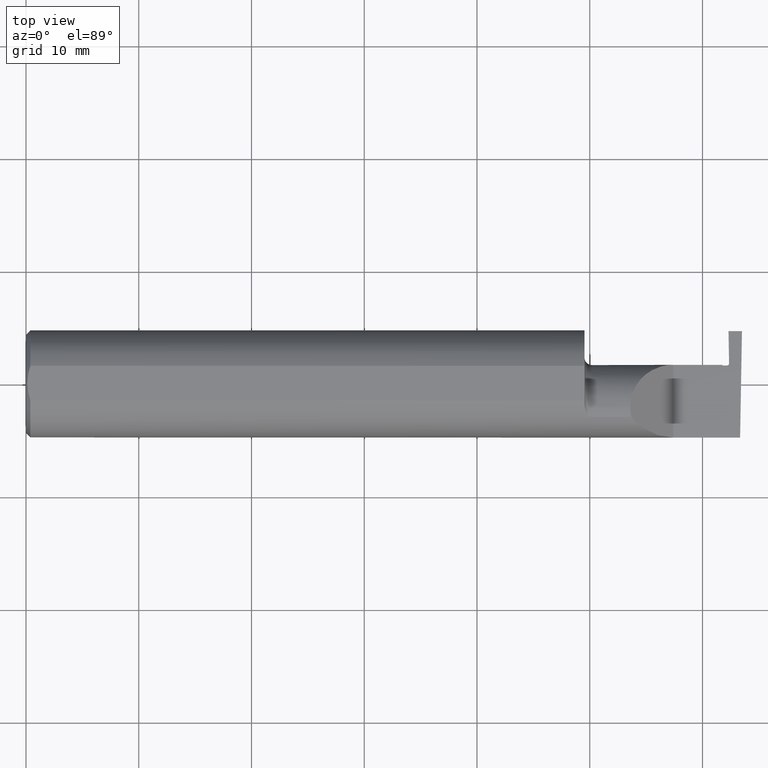
[diagram: clean part render]
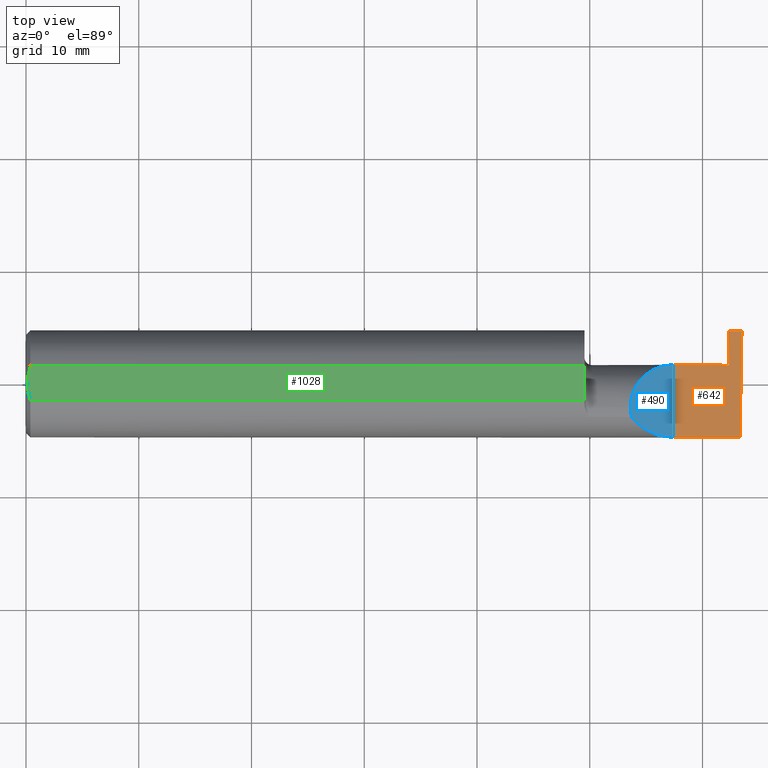
[diagram: same view with three faces highlighted in distinct colors, each labeled with its STEP entity id]
A machine part, top view with three faces highlighted in distinct colors.
Their STEP definitions:

[orange] entity #642 — the highlighted planar face has unit normal (-0, 0, -1).
#30 = VERTEX_POINT ( 'NONE', #423 ) ;
#39 = ORIENTED_EDGE ( 'NONE', *, *, #864, .T. ) ;
#52 = EDGE_CURVE ( 'NONE', #146, #477, #680, .T. ) ;
#65 = CARTESIAN_POINT ( 'NONE',  ( 2.399999999999999911, 0.1846500000000000363, -3.367778697655196529E-19 ) ) ;
#94 = LINE ( 'NONE', #175, #547 ) ;
#119 = B_SPLINE_CURVE_WITH_KNOTS ( 'NONE', 1,
 ( #405, #714 ),
 .UNSPECIFIED., .F., .F.,
 ( 2, 2 ),
 ( 0.000000000000000000, 7.184204878158464156E-05 ),
 .UNSPECIFIED. ) ;
#138 = CARTESIAN_POINT ( 'NONE',  ( 2.260000000000000231, 0.06664999999999998703, 2.939152317953647352E-17 ) ) ;
#145 = LINE ( 'NONE', #799, #532 ) ;
#146 = VERTEX_POINT ( 'NONE', #538 ) ;
#150 = EDGE_CURVE ( 'NONE', #30, #896, #1027, .T. ) ;
#153 = VERTEX_POINT ( 'NONE', #138 ) ;
#154 = VECTOR ( 'NONE', #192, 39.37007874015748143 ) ;
#161 = ORIENTED_EDGE ( 'NONE', *, *, #443, .F. ) ;
#170 = EDGE_CURVE ( 'NONE', #838, #398, #371, .T. ) ;
#175 = CARTESIAN_POINT ( 'NONE',  ( 2.500000000000000000, 0.1846500000000000363, 0.000000000000000000 ) ) ;
#182 = VERTEX_POINT ( 'NONE', #525 ) ;
#192 = DIRECTION ( 'NONE',  ( -0.000000000000000000, 1.000000000000000000, -0.000000000000000000 ) ) ;
#194 = VERTEX_POINT ( 'NONE', #706 ) ;
#205 = PLANE ( 'NONE',  #953 ) ;
#221 = VECTOR ( 'NONE', #868, 39.37007874015748143 ) ;
#222 = ORIENTED_EDGE ( 'NONE', *, *, #340, .F. ) ;
#229 = DIRECTION ( 'NONE',  ( 1.000000000000000000, 0.000000000000000000, 0.000000000000000000 ) ) ;
#248 = ORIENTED_EDGE ( 'NONE', *, *, #1043, .T. ) ;
#275 = CARTESIAN_POINT ( 'NONE',  ( 2.454970289910081593, 0.07177216684492376819, -4.877016300601304121E-11 ) ) ;
#280 = EDGE_CURVE ( 'NONE', #194, #182, #119, .T. ) ;
#290 = CARTESIAN_POINT ( 'NONE',  ( 3.749399456654646757E-32, -0.1873499999999999888, 3.061616997868384127E-16 ) ) ;
#293 = CARTESIAN_POINT ( 'NONE',  ( 2.454970289910081593, 0.07177216684492376819, -4.877016300601304121E-11 ) ) ;
#308 = ORIENTED_EDGE ( 'NONE', *, *, #788, .F. ) ;
#340 = EDGE_CURVE ( 'NONE', #153, #182, #145, .T. ) ;
#344 = ORIENTED_EDGE ( 'NONE', *, *, #52, .T. ) ;
#370 = CARTESIAN_POINT ( 'NONE',  ( 2.447971356043616264, 0.06464999999999866687, -4.347370564169126606E-11 ) ) ;
#371 = LINE ( 'NONE', #65, #824 ) ;
#372 = CARTESIAN_POINT ( 'NONE',  ( 2.260000000000000231, -0.1873499999999999888, 2.939152317953647352E-17 ) ) ;
#398 = VERTEX_POINT ( 'NONE', #655 ) ;
#405 = CARTESIAN_POINT ( 'NONE',  ( 2.432999999988582296, 0.06464999999899190275, 1.634762571518729889E-10 ) ) ;
#423 = CARTESIAN_POINT ( 'NONE',  ( 2.493506715846705468, -0.1873499999999999888, 0.000000000000000000 ) ) ;
#443 = EDGE_CURVE ( 'NONE', #896, #153, #555, .T. ) ;
#460 = CARTESIAN_POINT ( 'NONE',  ( 2.500000000000000000, -0.2000000000000000111, 0.000000000000000000 ) ) ;
#461 = CARTESIAN_POINT ( 'NONE',  ( 2.432999999988582296, 0.06464999999899190275, 1.634762571518729889E-10 ) ) ;
#477 = VERTEX_POINT ( 'NONE', #842 ) ;
#525 = CARTESIAN_POINT ( 'NONE',  ( 2.431000000000000494, 0.06664999999999988989, 9.135099441613365556E-18 ) ) ;
#532 = VECTOR ( 'NONE', #229, 39.37007874015748143 ) ;
#538 = CARTESIAN_POINT ( 'NONE',  ( 2.454970289910081593, 0.07177216684492376819, -4.877016300601304121E-11 ) ) ;
#547 = VECTOR ( 'NONE', #907, 39.37007874015748143 ) ;
#555 = LINE ( 'NONE', #919, #154 ) ;
#605 = CARTESIAN_POINT ( 'NONE',  ( 2.455042847893950775, 0.06761532263369882112, -4.782922004236755124E-11 ) ) ;
#623 = CARTESIAN_POINT ( 'NONE',  ( 2.452999999986549717, 0.1846500000000000363, -3.367778697655196529E-19 ) ) ;
#627 = DIRECTION ( 'NONE',  ( 1.000000000000000000, -0.000000000000000000, -0.000000000000000000 ) ) ;
#642 = ADVANCED_FACE ( 'NONE', ( #942 ), #205, .F. ) ;
#655 = CARTESIAN_POINT ( 'NONE',  ( 2.500000000000000000, 0.1846500000000000363, 0.000000000000000000 ) ) ;
#656 = EDGE_LOOP ( 'NONE', ( #981, #308, #924, #39, #344, #248, #921, #222, #161 ) ) ;
#663 = CARTESIAN_POINT ( 'NONE',  ( 2.447971356043616264, 0.06464999999999866687, -4.347370564169126606E-11 ) ) ;
#680 =( BOUNDED_CURVE ( )  B_SPLINE_CURVE ( 3, ( #275, #605, #827, #663 ),
 .UNSPECIFIED., .F., .F. ) 
 B_SPLINE_CURVE_WITH_KNOTS ( ( 4, 4 ),
 ( 1.301042606982605513E-18, 0.0002808519284744346906 ),
 .UNSPECIFIED. ) 
 CURVE ( )  GEOMETRIC_REPRESENTATION_ITEM ( )  RATIONAL_B_SPLINE_CURVE ( ( 1.000000000000000000, 0.8006061761999021531, 0.8006061761999021531, 1.000000000000000000 ) ) 
 REPRESENTATION_ITEM ( '' )  );
#702 = CARTESIAN_POINT ( 'NONE',  ( 2.452999999986549717, 0.1846500000000000363, -3.367778697655196529E-19 ) ) ;
#706 = CARTESIAN_POINT ( 'NONE',  ( 2.432999999988582296, 0.06464999999899190275, 1.634762571518729889E-10 ) ) ;
#714 = CARTESIAN_POINT ( 'NONE',  ( 2.431000000000000494, 0.06664999999999988989, 9.135099441613365556E-18 ) ) ;
#788 = EDGE_CURVE ( 'NONE', #398, #30, #94, .T. ) ;
#799 = CARTESIAN_POINT ( 'NONE',  ( 1.949999999999999956, 0.06665000000000001479, 6.735557395310447447E-17 ) ) ;
#824 = VECTOR ( 'NONE', #627, 39.37007874015748143 ) ;
#827 = CARTESIAN_POINT ( 'NONE',  ( 2.452128833457462687, 0.06464999999995883762, -4.700298922309772551E-11 ) ) ;
#838 = VERTEX_POINT ( 'NONE', #623 ) ;
#842 = CARTESIAN_POINT ( 'NONE',  ( 2.447971356043616264, 0.06464999999999866687, -4.347370564169126606E-11 ) ) ;
#854 = DIRECTION ( 'NONE',  ( -1.000000000000000000, 0.000000000000000000, 1.224646799147353700E-16 ) ) ;
#864 = EDGE_CURVE ( 'NONE', #838, #146, #961, .T. ) ;
#868 = DIRECTION ( 'NONE',  ( -1.000000000000000000, -0.000000000000000000, -0.000000000000000000 ) ) ;
#896 = VERTEX_POINT ( 'NONE', #372 ) ;
#907 = DIRECTION ( 'NONE',  ( -0.01745240643727703073, -0.9998476951563912696, 0.000000000000000000 ) ) ;
#919 = CARTESIAN_POINT ( 'NONE',  ( 2.260000000000000231, -0.2000000000000000111, 2.939152317953647352E-17 ) ) ;
#921 = ORIENTED_EDGE ( 'NONE', *, *, #280, .T. ) ;
#924 = ORIENTED_EDGE ( 'NONE', *, *, #170, .F. ) ;
#936 = DIRECTION ( 'NONE',  ( -1.224646799147353700E-16, 0.000000000000000000, -1.000000000000000000 ) ) ;
#942 = FACE_OUTER_BOUND ( 'NONE', #656, .T. ) ;
#953 = AXIS2_PLACEMENT_3D ( 'NONE', #460, #936, #854 ) ;
#961 = B_SPLINE_CURVE_WITH_KNOTS ( 'NONE', 1,
 ( #702, #293 ),
 .UNSPECIFIED., .F., .F.,
 ( 2, 2 ),
 ( 6.218240129447693061E-15, 0.002867533701424562331 ),
 .UNSPECIFIED. ) ;
#981 = ORIENTED_EDGE ( 'NONE', *, *, #150, .F. ) ;
#998 = B_SPLINE_CURVE_WITH_KNOTS ( 'NONE', 1,
 ( #370, #461 ),
 .UNSPECIFIED., .F., .F.,
 ( 2, 2 ),
 ( 1.387778780781445521E-17, 0.0003802724437978743932 ),
 .UNSPECIFIED. ) ;
#1027 = LINE ( 'NONE', #290, #221 ) ;
#1043 = EDGE_CURVE ( 'NONE', #477, #194, #998, .T. ) ;

[blue] entity #490 — the highlighted planar face has unit normal (-0.7071, 0, -0.7071).
#18 = DIRECTION ( 'NONE',  ( -0.7071067811865496822, 0.000000000000000000, -0.7071067811865454633 ) ) ;
#45 = AXIS2_PLACEMENT_3D ( 'NONE', #435, #18, #603 ) ;
#56 =( BOUNDED_CURVE ( )  B_SPLINE_CURVE ( 3, ( #685, #1003, #273, #607 ),
 .UNSPECIFIED., .F., .T. ) 
 B_SPLINE_CURVE_WITH_KNOTS ( ( 4, 4 ),
 ( 0.000000000000000000, 1.570796326794896558 ),
 .UNSPECIFIED. ) 
 CURVE ( )  GEOMETRIC_REPRESENTATION_ITEM ( )  RATIONAL_B_SPLINE_CURVE ( ( 1.000000000000000000, 0.8047378541243649375, 0.8047378541243649375, 1.000000000000000000 ) ) 
 REPRESENTATION_ITEM ( '' )  );
#57 = EDGE_CURVE ( 'NONE', #716, #408, #786, .T. ) ;
#64 = CARTESIAN_POINT ( 'NONE',  ( 2.113883229301070532, -0.1172600179964006645, 0.1461167706989302539 ) ) ;
#69 = ORIENTED_EDGE ( 'NONE', *, *, #581, .F. ) ;
#76 = ORIENTED_EDGE ( 'NONE', *, *, #609, .F. ) ;
#112 = PLANE ( 'NONE',  #45 ) ;
#138 = CARTESIAN_POINT ( 'NONE',  ( 2.260000000000000231, 0.06664999999999998703, 2.939152317953647352E-17 ) ) ;
#153 = VERTEX_POINT ( 'NONE', #138 ) ;
#154 = VECTOR ( 'NONE', #192, 39.37007874015748143 ) ;
#165 = CARTESIAN_POINT ( 'NONE',  ( 2.110000000000001208, -0.08334999999999996578, 0.1499999999999999667 ) ) ;
#172 = ORIENTED_EDGE ( 'NONE', *, *, #443, .T. ) ;
#177 = CARTESIAN_POINT ( 'NONE',  ( 2.113883229301070532, -0.1172600179964006645, 0.1461167706989302539 ) ) ;
#192 = DIRECTION ( 'NONE',  ( -0.000000000000000000, 1.000000000000000000, -0.000000000000000000 ) ) ;
#273 = CARTESIAN_POINT ( 'NONE',  ( 2.172132034355964691, 0.06665000000000000091, 0.08786796564403574761 ) ) ;
#354 = FACE_OUTER_BOUND ( 'NONE', #966, .T. ) ;
#372 = CARTESIAN_POINT ( 'NONE',  ( 2.260000000000000231, -0.1873499999999999888, 2.939152317953647352E-17 ) ) ;
#408 = VERTEX_POINT ( 'NONE', #165 ) ;
#435 = CARTESIAN_POINT ( 'NONE',  ( 2.260000000000000231, -0.2000000000000000111, 2.939152317953647352E-17 ) ) ;
#443 = EDGE_CURVE ( 'NONE', #896, #153, #555, .T. ) ;
#490 = ADVANCED_FACE ( 'NONE', ( #354 ), #112, .F. ) ;
#503 = CARTESIAN_POINT ( 'NONE',  ( 2.111300037307155986, -0.1061291577212409298, 0.1486999626928446061 ) ) ;
#537 = CARTESIAN_POINT ( 'NONE',  ( 2.113883229301070532, -0.1172600179964006645, 0.1461167706989302539 ) ) ;
#555 = LINE ( 'NONE', #919, #154 ) ;
#577 = ORIENTED_EDGE ( 'NONE', *, *, #57, .F. ) ;
#581 = EDGE_CURVE ( 'NONE', #408, #153, #56, .T. ) ;
#589 =( BOUNDED_CURVE ( )  B_SPLINE_CURVE ( 3, ( #612, #1025, #771, #64 ),
 .UNSPECIFIED., .F., .T. ) 
 B_SPLINE_CURVE_WITH_KNOTS ( ( 4, 4 ),
 ( 4.712388980384688786, 5.606916381293136631 ),
 .UNSPECIFIED. ) 
 CURVE ( )  GEOMETRIC_REPRESENTATION_ITEM ( )  RATIONAL_B_SPLINE_CURVE ( ( 1.000000000000000000, 0.9344226172588802060, 0.9344226172588802060, 1.000000000000000000 ) ) 
 REPRESENTATION_ITEM ( '' )  );
#603 = DIRECTION ( 'NONE',  ( -0.7071067811865454633, 0.000000000000000000, 0.7071067811865496822 ) ) ;
#607 = CARTESIAN_POINT ( 'NONE',  ( 2.260000000000000231, 0.06664999999999998703, 2.939152317953647352E-17 ) ) ;
#609 = EDGE_CURVE ( 'NONE', #896, #716, #589, .T. ) ;
#612 = CARTESIAN_POINT ( 'NONE',  ( 2.260000000000000231, -0.1873499999999999888, 2.939152317953647352E-17 ) ) ;
#685 = CARTESIAN_POINT ( 'NONE',  ( 2.110000000000001208, -0.08334999999999996578, 0.1499999999999999667 ) ) ;
#692 = CARTESIAN_POINT ( 'NONE',  ( 2.110000000000001208, -0.08334999999999996578, 0.1499999999999999667 ) ) ;
#716 = VERTEX_POINT ( 'NONE', #537 ) ;
#771 = CARTESIAN_POINT ( 'NONE',  ( 2.150065971957467070, -0.1623470442677541759, 0.1099340280425336880 ) ) ;
#786 =( BOUNDED_CURVE ( )  B_SPLINE_CURVE ( 3, ( #177, #503, #944, #692 ),
 .UNSPECIFIED., .F., .T. ) 
 B_SPLINE_CURVE_WITH_KNOTS ( ( 4, 4 ),
 ( 6.055147272130142255, 6.283185307179586232 ),
 .UNSPECIFIED. ) 
 CURVE ( )  GEOMETRIC_REPRESENTATION_ITEM ( )  RATIONAL_B_SPLINE_CURVE ( ( 1.000000000000000000, 0.9956712472009929815, 0.9956712472009929815, 1.000000000000000000 ) ) 
 REPRESENTATION_ITEM ( '' )  );
#896 = VERTEX_POINT ( 'NONE', #372 ) ;
#919 = CARTESIAN_POINT ( 'NONE',  ( 2.260000000000000231, -0.2000000000000000111, 2.939152317953647352E-17 ) ) ;
#944 = CARTESIAN_POINT ( 'NONE',  ( 2.110000000000000764, -0.09477667630339417504, 0.1499999999999999667 ) ) ;
#966 = EDGE_LOOP ( 'NONE', ( #577, #76, #172, #69 ) ) ;
#1003 = CARTESIAN_POINT ( 'NONE',  ( 2.110000000000001208, 0.004517965644035767080, 0.1499999999999999667 ) ) ;
#1025 = CARTESIAN_POINT ( 'NONE',  ( 2.202189699843949633, -0.1873500000000000998, 0.05781030015605104211 ) ) ;

[green] entity #1028 — the highlighted planar face has unit normal (0, -0, 1).
#4 = B_SPLINE_CURVE_WITH_KNOTS ( 'NONE', 3,
 ( #675, #923, #983, #254, #999, #748 ),
 .UNSPECIFIED., .F., .F.,
 ( 4, 2, 4 ),
 ( 0.004207325536406422359, 0.004979129323161655095, 0.005750933109916887831 ),
 .UNSPECIFIED. ) ;
#54 = FACE_OUTER_BOUND ( 'NONE', #905, .T. ) ;
#90 = ORIENTED_EDGE ( 'NONE', *, *, #535, .T. ) ;
#114 = CARTESIAN_POINT ( 'NONE',  ( 0.000000000000000000, 0.06039039658753697637, 0.1773499999999999799 ) ) ;
#116 = B_SPLINE_CURVE_WITH_KNOTS ( 'NONE', 3,
 ( #698, #121, #209, #926, #770, #870 ),
 .UNSPECIFIED., .F., .F.,
 ( 4, 2, 4 ),
 ( 0.005750933109916887831, 0.006521788775031543001, 0.007292644440146199038 ),
 .UNSPECIFIED. ) ;
#121 = CARTESIAN_POINT ( 'NONE',  ( 0.004999999999999833571, -0.01026662907944655458, 0.1773499999999999521 ) ) ;
#128 = CARTESIAN_POINT ( 'NONE',  ( 2.500000000000000000, -0.1873500000000000165, 0.1773499999999999799 ) ) ;
#152 = CARTESIAN_POINT ( 'NONE',  ( 0.01499999999999999944, -0.06039039658753697637, 0.1773499999999999799 ) ) ;
#188 = ORIENTED_EDGE ( 'NONE', *, *, #360, .T. ) ;
#190 = EDGE_CURVE ( 'NONE', #740, #657, #365, .T. ) ;
#209 = CARTESIAN_POINT ( 'NONE',  ( 0.005896899252109314912, -0.02043863390046160924, 0.1773500000000000354 ) ) ;
#215 = CARTESIAN_POINT ( 'NONE',  ( 0.01499999999999756042, 0.06039039658754215278, 0.1773499999999999799 ) ) ;
#254 = CARTESIAN_POINT ( 'NONE',  ( 0.005916828623699125177, 0.02060071390057613763, 0.1773499999999999799 ) ) ;
#261 = ORIENTED_EDGE ( 'NONE', *, *, #190, .T. ) ;
#327 = VERTEX_POINT ( 'NONE', #152 ) ;
#351 = ORIENTED_EDGE ( 'NONE', *, *, #811, .T. ) ;
#360 = EDGE_CURVE ( 'NONE', #327, #740, #731, .T. ) ;
#365 = LINE ( 'NONE', #934, #735 ) ;
#374 = DIRECTION ( 'NONE',  ( 0.000000000000000000, -0.000000000000000000, 1.000000000000000000 ) ) ;
#381 = DIRECTION ( 'NONE',  ( -0.000000000000000000, 1.000000000000000000, 0.000000000000000000 ) ) ;
#425 = LINE ( 'NONE', #114, #464 ) ;
#464 = VECTOR ( 'NONE', #766, 39.37007874015748143 ) ;
#524 = PLANE ( 'NONE',  #1020 ) ;
#535 = EDGE_CURVE ( 'NONE', #746, #978, #4, .T. ) ;
#582 = ORIENTED_EDGE ( 'NONE', *, *, #911, .T. ) ;
#628 = CARTESIAN_POINT ( 'NONE',  ( 1.949999999999999956, -0.06039039658753699025, 0.1773499999999999799 ) ) ;
#657 = VERTEX_POINT ( 'NONE', #932 ) ;
#675 = CARTESIAN_POINT ( 'NONE',  ( 0.01499999999999756042, 0.06039039658754215278, 0.1773499999999999799 ) ) ;
#698 = CARTESIAN_POINT ( 'NONE',  ( 0.004999999999999835305, 2.941982542510190671E-17, 0.1773499999999999799 ) ) ;
#700 = DIRECTION ( 'NONE',  ( 1.000000000000000000, 0.000000000000000000, -0.000000000000000000 ) ) ;
#731 = LINE ( 'NONE', #1036, #974 ) ;
#735 = VECTOR ( 'NONE', #381, 39.37007874015748143 ) ;
#740 = VERTEX_POINT ( 'NONE', #628 ) ;
#746 = VERTEX_POINT ( 'NONE', #215 ) ;
#748 = CARTESIAN_POINT ( 'NONE',  ( 0.004999999999999835305, 2.941982542510190671E-17, 0.1773499999999999799 ) ) ;
#766 = DIRECTION ( 'NONE',  ( -1.000000000000000000, -0.000000000000000000, -0.000000000000000000 ) ) ;
#770 = CARTESIAN_POINT ( 'NONE',  ( 0.01186375298701897348, -0.05066077215909271098, 0.1773499999999999799 ) ) ;
#784 = CARTESIAN_POINT ( 'NONE',  ( 0.004999999999999835305, 2.941982542510190671E-17, 0.1773499999999999799 ) ) ;
#811 = EDGE_CURVE ( 'NONE', #657, #746, #425, .T. ) ;
#870 = CARTESIAN_POINT ( 'NONE',  ( 0.01499999999999999944, -0.06039039658753697637, 0.1773499999999999799 ) ) ;
#895 = DIRECTION ( 'NONE',  ( 1.000000000000000000, 0.000000000000000000, 0.000000000000000000 ) ) ;
#905 = EDGE_LOOP ( 'NONE', ( #188, #261, #351, #90, #582 ) ) ;
#911 = EDGE_CURVE ( 'NONE', #978, #327, #116, .T. ) ;
#923 = CARTESIAN_POINT ( 'NONE',  ( 0.01185291896084217714, 0.05062716160312498437, 0.1773499999999999521 ) ) ;
#926 = CARTESIAN_POINT ( 'NONE',  ( 0.009318557230853204490, -0.04061090184993776386, 0.1773499999999999799 ) ) ;
#932 = CARTESIAN_POINT ( 'NONE',  ( 1.949999999999999956, 0.06039039658754216666, 0.1773499999999999799 ) ) ;
#934 = CARTESIAN_POINT ( 'NONE',  ( 1.949999999999999956, -0.1873500000000000165, 0.1773499999999999799 ) ) ;
#974 = VECTOR ( 'NONE', #895, 39.37007874015748143 ) ;
#978 = VERTEX_POINT ( 'NONE', #784 ) ;
#983 = CARTESIAN_POINT ( 'NONE',  ( 0.009346310357820472939, 0.04072930668827419443, 0.1773500000000000354 ) ) ;
#999 = CARTESIAN_POINT ( 'NONE',  ( 0.004999999999999839642, 0.01027925662263861305, 0.1773499999999999799 ) ) ;
#1020 = AXIS2_PLACEMENT_3D ( 'NONE', #128, #374, #700 ) ;
#1028 = ADVANCED_FACE ( 'NONE', ( #54 ), #524, .T. ) ;
#1036 = CARTESIAN_POINT ( 'NONE',  ( 0.000000000000000000, -0.06039039658753697637, 0.1773499999999999799 ) ) ;